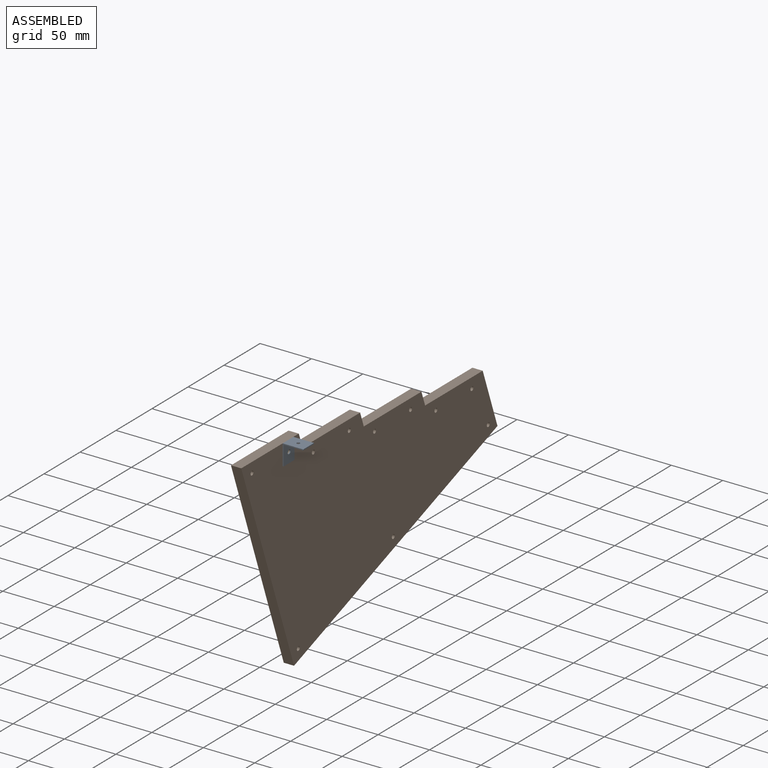
[diagram: assembled view]
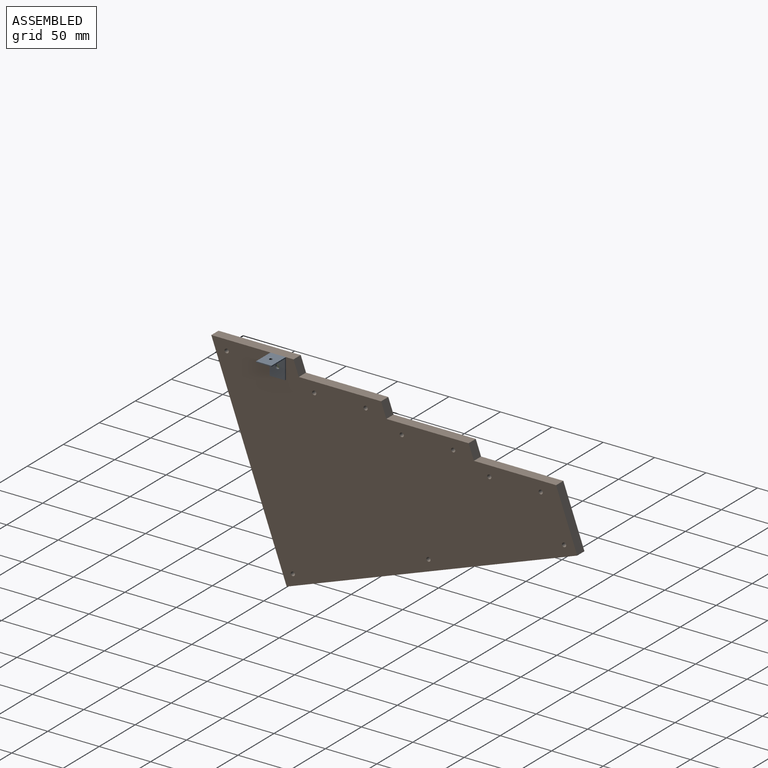
[diagram: assembled view, second angle]
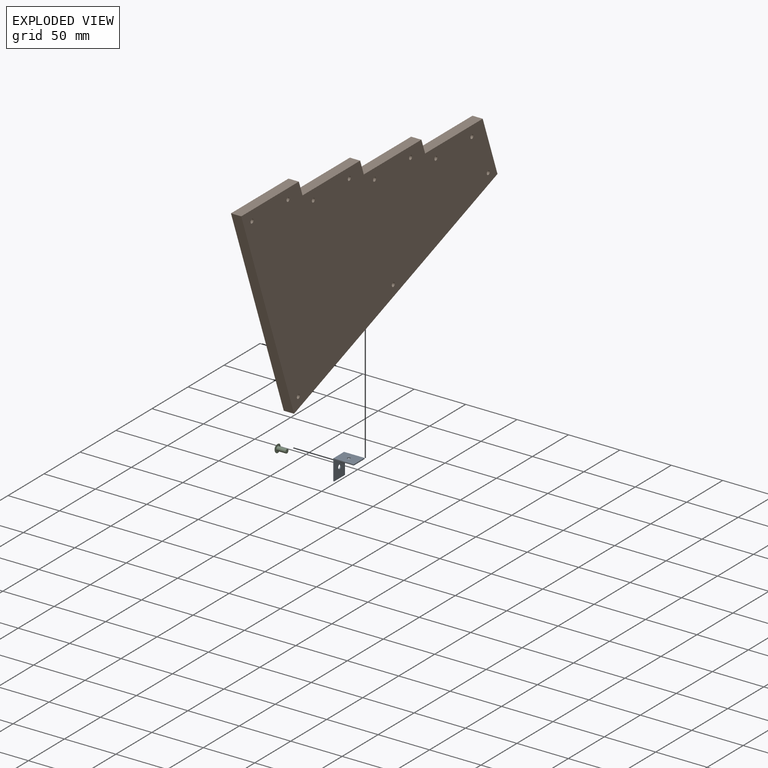
[diagram: exploded view]
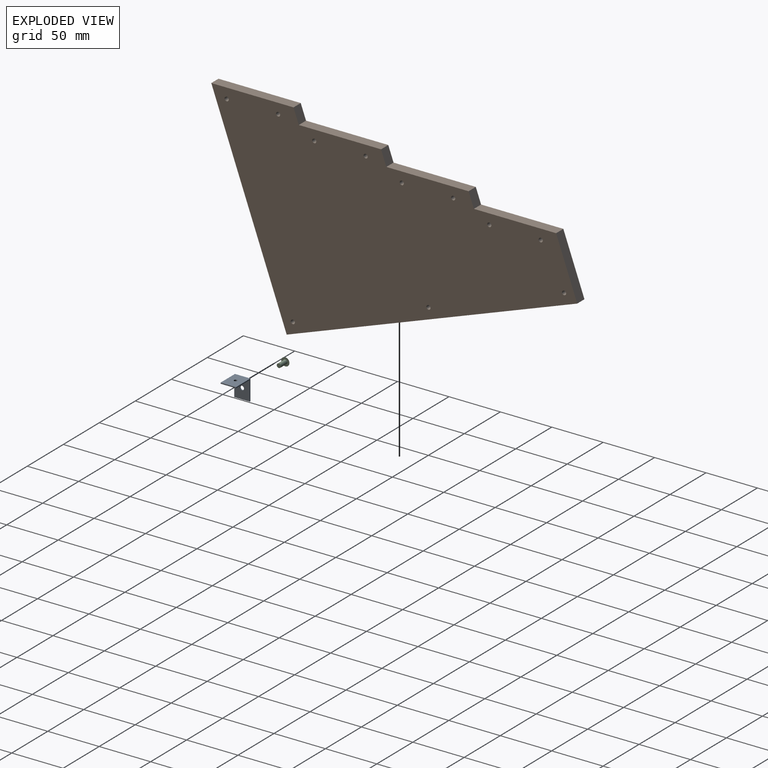
[diagram: exploded view, second angle]
ASSEMBLY  parts=3 mates=4
PART A: 10 faces, bbox 15x20x20 mm
  f0: plane 20x15mm, normal (0,0,-1), area 292.9mm2, adj f1,f5,f6,f7,f9
  f1: plane 20x15mm, normal (0,1,0), area 287.4mm2, adj f0,f2,f6,f7,f8
  f2: plane 15x1mm, normal (0,0,1), area 15mm2, adj f1,f3,f6,f7
  f3: plane 19x15mm, normal (0,-1,0), area 272.4mm2, adj f2,f4,f6,f7,f8
  f4: plane 19x15mm, normal (0,0,1), area 277.9mm2, adj f3,f5,f6,f7,f9
  f5: plane 15x1mm, normal (0,-1,0), area 15mm2, adj f0,f4,f6,f7
  f6: plane 20x20mm, normal (1,0,0), area 39mm2, adj f0,f1,f2,f3,f4,f5
  f7: plane 20x20mm, normal (-1,0,0), area 39mm2, adj f0,f1,f2,f3,f4,f5
  f8: cylinder r=2mm len=4mm, axis (0,1,0), area 12.6mm2, adj f1,f3
  f9: cylinder r=1.5mm len=3mm, axis (0,0,-1), area 9.4mm2, adj f0,f4
PART B: 23 faces, bbox 214.4x300.7x10 mm
  f0: plane 214.45x10mm, normal (0,1,0), area 2144.5mm2, adj f1,f20,f21,f22
  f1: plane 300.7x10mm, normal (-1,0,0), area 3007mm2, adj f0,f2,f21,f22
  f2: plane 60x10mm, normal (0,-1,0), area 600mm2, adj f1,f3,f21,f22
  f3: plane 75.18x27.36mm, normal (0.94,-0.34,0), area 800mm2, adj f2,f4,f21,f22
  f4: plane 15x10mm, normal (0,-1,0), area 150mm2, adj f3,f5,f21,f22
  f5: plane 75.18x27.36mm, normal (0.94,-0.34,0), area 800mm2, adj f4,f6,f21,f22
  f6: plane 15x10mm, normal (0,-1,0), area 150mm2, adj f5,f7,f21,f22
  f7: plane 75.18x27.36mm, normal (0.94,-0.34,0), area 800mm2, adj f6,f8,f21,f22
  f8: plane 15x10mm, normal (0,-1,0), area 150mm2, adj f7,f20,f21,f22
  f9: cylinder r=2mm len=10mm, axis (0,0,-1), area 125.7mm2, adj f21,f22
  f10: cylinder r=2mm len=10mm, axis (0,0,-1), area 125.7mm2, adj f21,f22
  f11: cylinder r=2mm len=10mm, axis (0,0,-1), area 125.7mm2, adj f21,f22
  f12: cylinder r=2mm len=10mm, axis (0,0,-1), area 125.7mm2, adj f21,f22
  f13: cylinder r=2mm len=10mm, axis (0,0,-1), area 125.7mm2, adj f21,f22
  f14: cylinder r=2mm len=10mm, axis (0,0,-1), area 125.7mm2, adj f21,f22
  f15: cylinder r=2mm len=10mm, axis (0,0,-1), area 125.7mm2, adj f21,f22
  f16: cylinder r=2mm len=10mm, axis (0,0,-1), area 125.7mm2, adj f21,f22
  f17: cylinder r=2mm len=10mm, axis (0,0,-1), area 125.7mm2, adj f21,f22
  f18: cylinder r=2mm len=10mm, axis (0,0,-1), area 125.7mm2, adj f21,f22
  f19: cylinder r=2mm len=10mm, axis (0,0,-1), area 125.7mm2, adj f21,f22
  f20: plane 75.18x27.36mm, normal (0.94,-0.34,0), area 800mm2, adj f0,f8,f21,f22
  f21: plane 300.7x214.45mm, normal (0,0,1), area 41125mm2, adj f0,f1,f2,f3,f4,f5,f6,f7
  f22: plane 300.7x214.45mm, normal (0,0,-1), area 41125mm2, adj f0,f1,f2,f3,f4,f5,f6,f7
PART C: 4 faces, bbox 25x24x24 mm
  f0: plane 4x4mm, normal (1,0,0), area 12.6mm2, adj f1
  f1: cylinder r=2mm len=9mm, axis (-1,0,0), area 113.1mm2, adj f0,f2
  f2: plane 24x24mm, normal (1,0,0), area 37.7mm2, adj f1,f3
  f3: revolved ~8x4mm, area 0mm2, adj f2
PLACE A rot(axis=(0.71,-0.71,0),180deg) t=(216.5,106.28,-191.73)mm
PLACE B rot(axis=(-0.7,0.12,-0.7),165.9deg) t=(168.27,50.98,-491.79)mm
PLACE C rot(axis=(1,0,0),20deg) t=(228.73,56,-242.64)mm
MATE planar A.f1 <-> B.f21  axis (-1,0,0) through (178.27,91.28,-227.07)mm
MATE fastened B.f15 <-> C.f1  axis (-1,0,0) through (168.27,98.78,-227.07)mm
MATE cylindrical A.f8 <-> B.f15  axis (-1,0,0) through (178.77,98.78,-227.07)mm
MATE planar B.f20 <-> A.f0  axis (0,0,1) through (173.27,73.78,-217.07)mm
